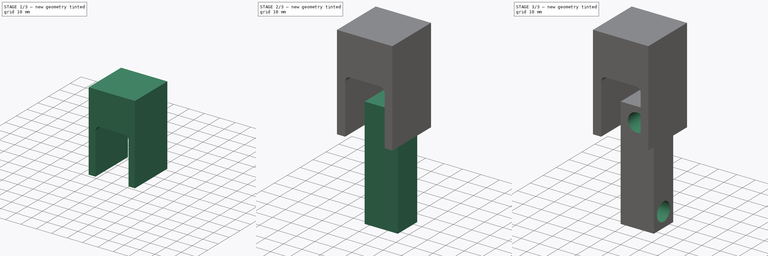
[diagram: build sequence overview — one tinted view per stage of 3, left to right]
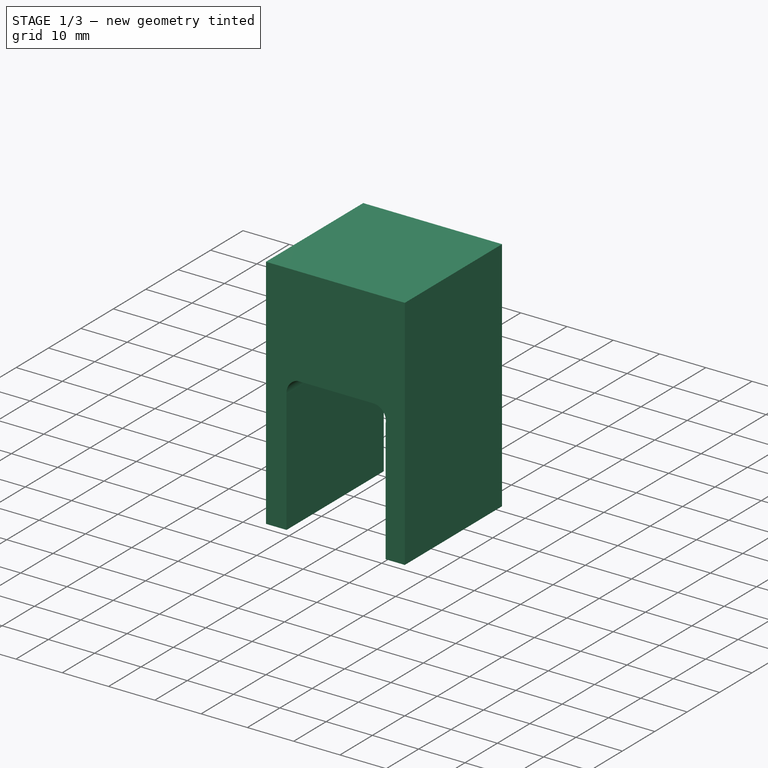
[diagram: stage 1 of 3 — iso view after this stage's code; geometry added in this stage tinted green]
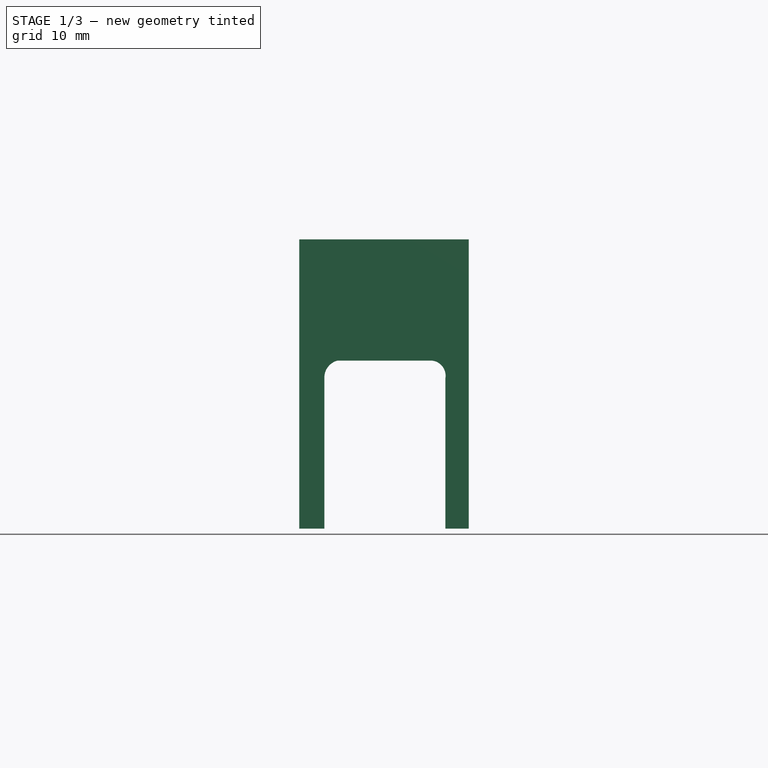
[diagram: stage 1 of 3 — front view after this stage's code; geometry added in this stage tinted green]
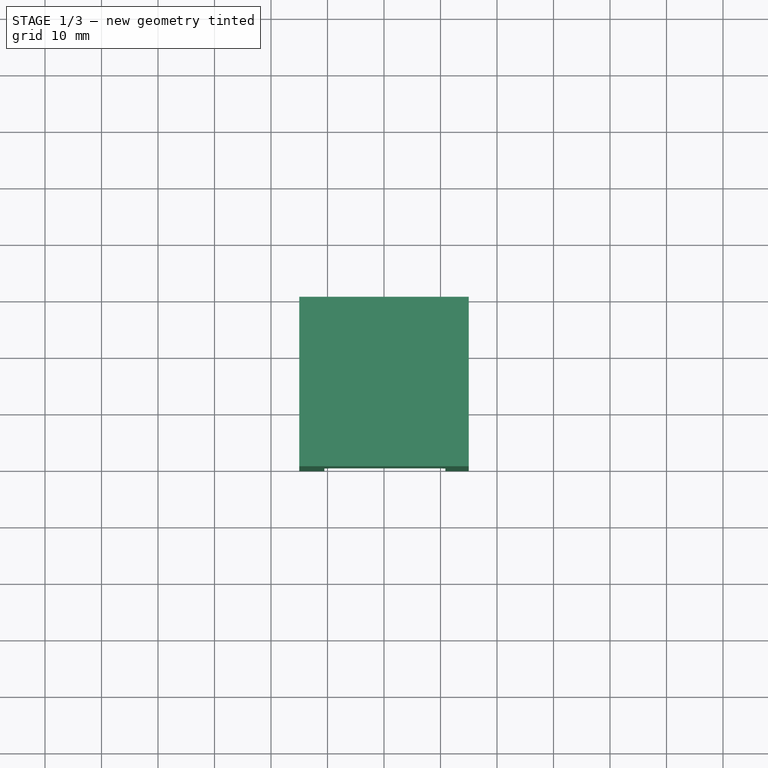
[diagram: stage 1 of 3 — top view after this stage's code; geometry added in this stage tinted green]
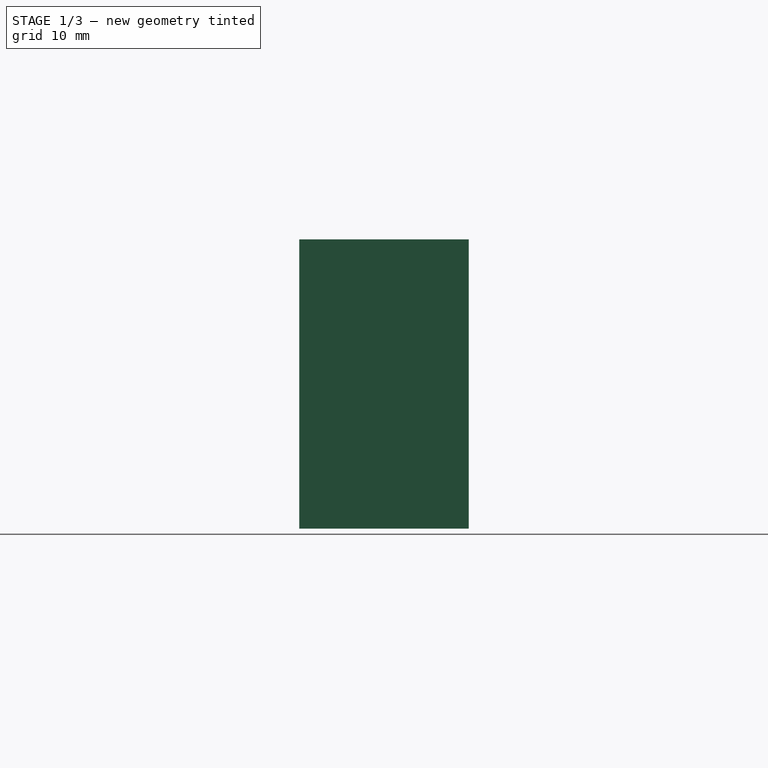
[diagram: stage 1 of 3 — right view after this stage's code; geometry added in this stage tinted green]
FCSTD DOCUMENT  (FreeCAD 0.21R33771 (Git))
Label: Universal Joint Design Fail
License: All rights reserved
LicenseURL: http://en.wikipedia.org/wiki/All_rights_reserved
objects: Sketcher::SketchObject×8, PartDesign::Pocket×4, PartDesign::Pad×3, PartDesign::Body×3
note: 25 computed .brp shape members not serialized (recipe doc carries the construction recipe); baked Part::Feature solids carry a one-line shape summary decoded from their .brp

FEATURE [Sketcher::SketchObject] Sketch005
  FullyConstrained = false
  MapMode = 5
  Placement = pos=(0,0,0) rot=(1,0,0;1.5708rad)
  Support = -> [XZ_Plane002]
  sketch-geometry (4):
    g0: LineSegment StartX=-15 StartY=18.4804 StartZ=0 EndX=-15 EndY=69.6597 EndZ=0
    g1: LineSegment StartX=-15 StartY=69.6597 StartZ=0 EndX=15 EndY=69.6597 EndZ=0
    g2: LineSegment StartX=15 StartY=18.4804 StartZ=0 EndX=15 EndY=69.6597 EndZ=0
    g3: LineSegment StartX=-15 StartY=18.4804 StartZ=0 EndX=15 EndY=18.4804 EndZ=0
  constraints (10):
    c: Vertical(g0)
    c: Coincident(g1,g0)
    c: Horizontal(g1)
    c: Coincident(g2,g1)
    c: Vertical(g2)
    c: Coincident(g3,g0)
    c: Coincident(g3,g2)
    c: Horizontal(g3)
    c: Distance(g2,g-2) = 15
    c: Distance(g0,g-2) = 15
FEATURE [PartDesign::Pad] Pad002
  Direction = (0,-1,2e-16)
  Length = 30
  Length2 = 10
  Placement = pos=(0,0,0) rot=(1,0,0;1.5708rad)
  Profile = -> Sketch005
  ReferenceAxis = -> Sketch005 [N_Axis]
  Type = 0
FEATURE [Sketcher::SketchObject] Sketch006
  FullyConstrained = false
  MapMode = 5
  Placement = pos=(0,0,0) rot=(1,0,0;1.5708rad)
  Support = -> [XZ_Plane002]
  sketch-geometry (6):
    g0: LineSegment StartX=-10.5519 StartY=18.2376 StartZ=0 EndX=-10.5519 EndY=45.045 EndZ=0
    g1: LineSegment StartX=10.8632 StartY=45.045 StartZ=0 EndX=10.8632 EndY=18.2376 EndZ=0
    g2: LineSegment StartX=10.8632 StartY=18.2376 StartZ=0 EndX=-10.5519 EndY=18.2376 EndZ=0
    g3: LineSegment StartX=-8.20953 StartY=48.2163 StartZ=0 EndX=8.36282 EndY=48.2163 EndZ=0
    g4: ArcOfCircle CenterX=-7.4542 CenterY=45.2077 CenterZ=0 NormalX=0 NormalY=0 NormalZ=1 AngleXU=0 Radius=3.10198 StartAngle=1.81677 EndAngle=3.19407
    g5: ArcOfCircle CenterX=8.20696 CenterY=45.5221 CenterZ=0 NormalX=0 NormalY=0 NormalZ=1 AngleXU=0 Radius=2.6987 StartAngle=6.10545 EndAngle=7.7962
  constraints (10):
    c: Vertical(g0)
    c: Vertical(g1)
    c: Coincident(g2,g1)
    c: Coincident(g2,g0)
    c: Horizontal(g2)
    c: Horizontal(g3)
    c: Coincident(g4,g3)
    c: Coincident(g4,g0)
    c: Coincident(g5,g3)
    c: Coincident(g5,g1)
FEATURE [PartDesign::Pocket] Pocket003
  BaseFeature = -> Pad002
  Direction = (0,1,2e-16)
  Length = 31
  Length2 = 5
  Placement = pos=(0,0,0) rot=(1,0,0;1.5708rad)
  Profile = -> Sketch006
  ReferenceAxis = -> Sketch006 [N_Axis]
  Reversed = true
  Type = 0
FEATURE [PartDesign::Body] Body002  label="Yoke002"
  Group = -> [Sketch005,Pad002,Sketch006,Pocket003]
  Origin = -> Origin002
  Placement = pos=(-1.45e-14,0,20) rot=(0,1,0;3.14159rad)
  Tip = -> Pocket003
FEATURE [Sketcher::SketchObject] Sketch007
  FullyConstrained = true
  MapMode = 5
  Support = -> [XY_Plane001]
FEATURE [PartDesign::Body] Body001  label="Yoke1"
  Group = -> [Sketch003,Pad001,Sketch004,Pocket002,Sketch007]
  Origin = -> Origin001
  Placement = pos=(-14,-16,0) rot=(0,0,1;1.5708rad)
  Tip = -> Pocket002
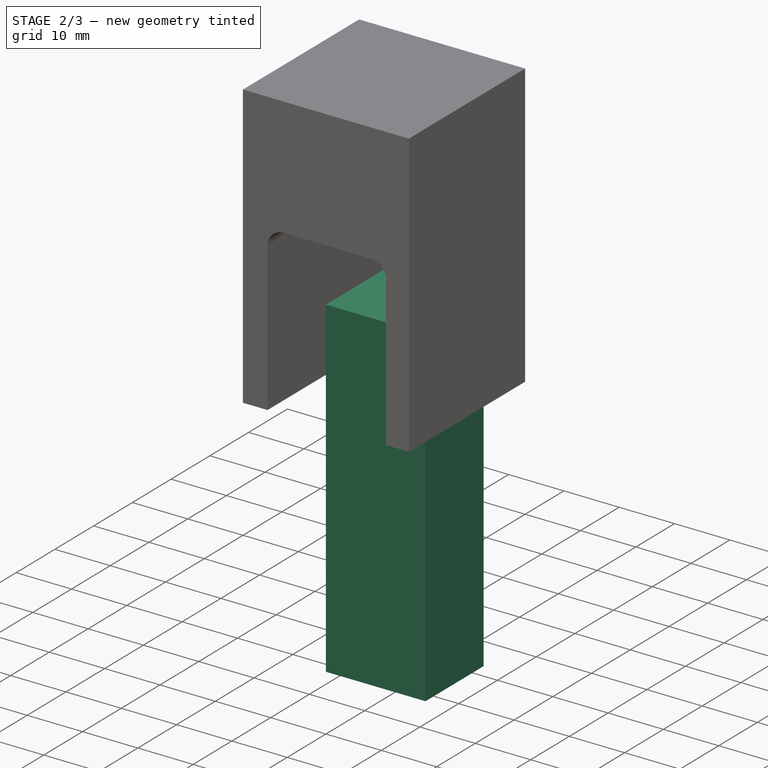
[diagram: stage 2 of 3 — iso view after this stage's code; geometry added in this stage tinted green]
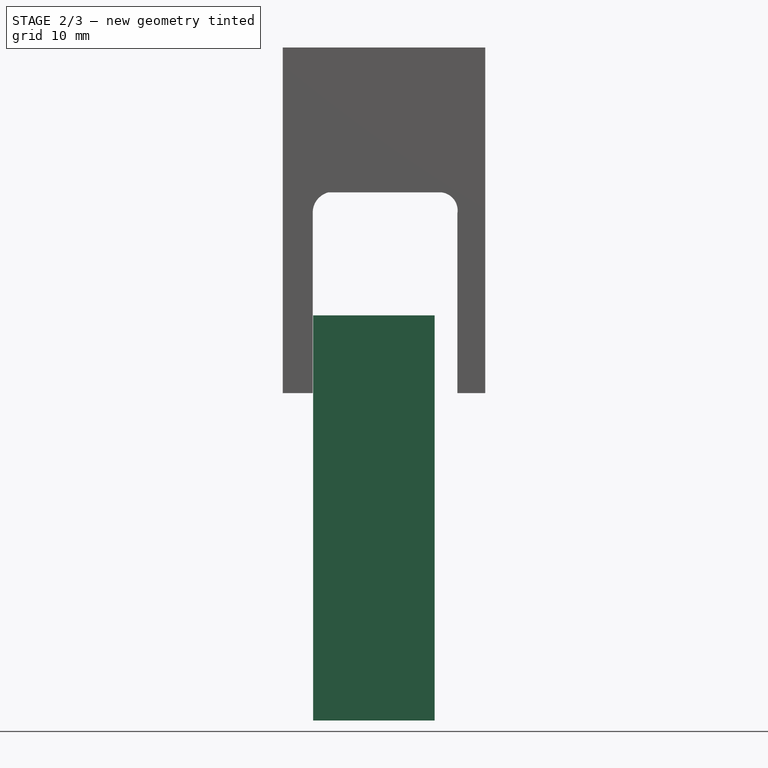
[diagram: stage 2 of 3 — front view after this stage's code; geometry added in this stage tinted green]
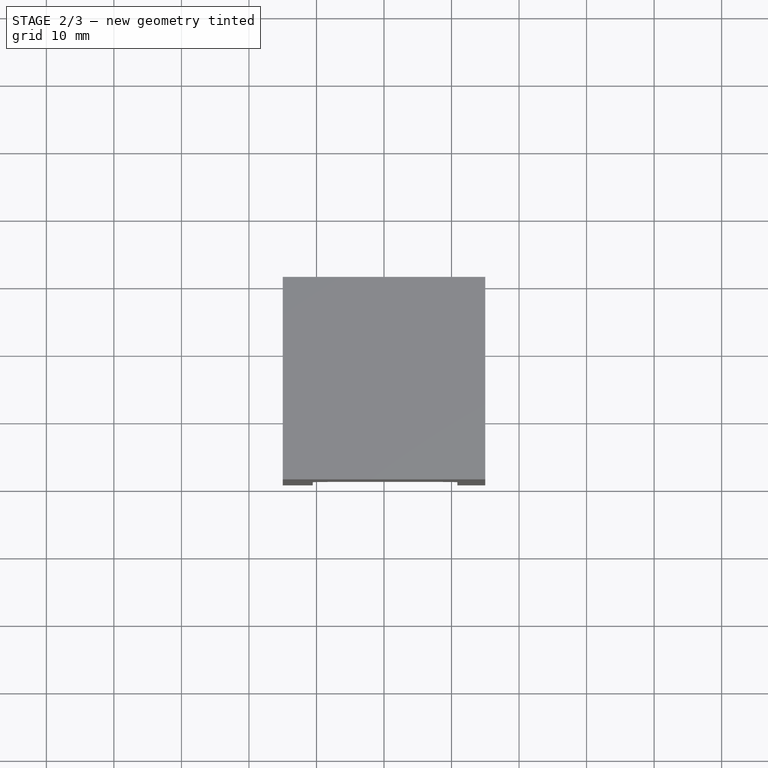
[diagram: stage 2 of 3 — top view after this stage's code; geometry added in this stage tinted green]
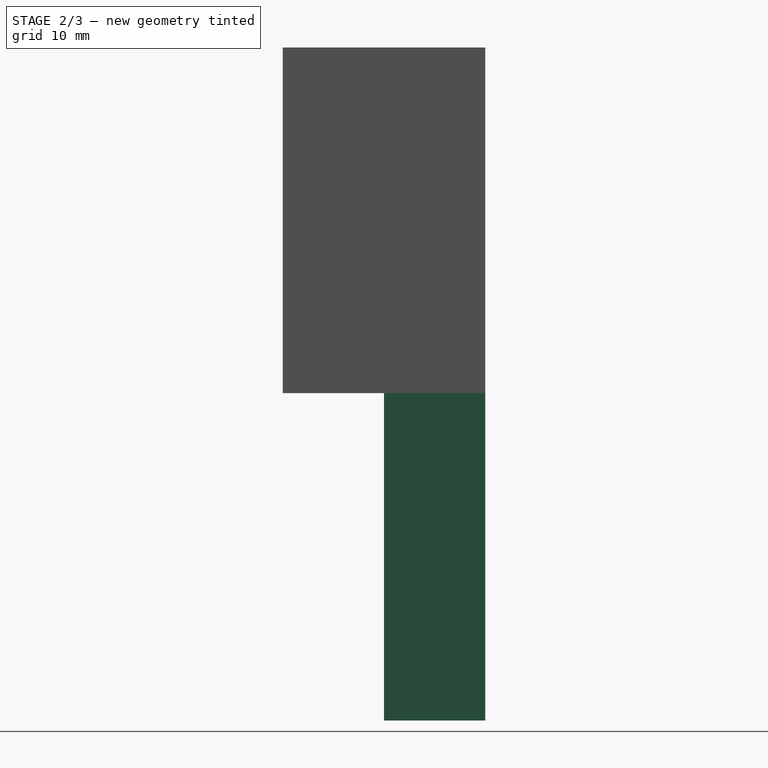
[diagram: stage 2 of 3 — right view after this stage's code; geometry added in this stage tinted green]
FEATURE [Sketcher::SketchObject] Sketch
  FullyConstrained = true
  MapMode = 5
  Placement = pos=(0,0,0) rot=(1,0,0;1.5708rad)
  Support = -> [XZ_Plane]
  sketch-geometry (5):
    g0: LineSegment StartX=-10.5 StartY=30 StartZ=0 EndX=7.5 EndY=30 EndZ=0
    g1: LineSegment StartX=7.5 StartY=5e-15 StartZ=0 EndX=7.5 EndY=30 EndZ=0
    g2: LineSegment StartX=7.5 StartY=5e-15 StartZ=0 EndX=7.5 EndY=-30 EndZ=0
    g3: LineSegment StartX=7.5 StartY=-30 StartZ=0 EndX=-10.5 EndY=-30 EndZ=0
    g4: LineSegment StartX=-10.5 StartY=30 StartZ=0 EndX=-10.5 EndY=-30 EndZ=0
  constraints (15):
    c: Horizontal(g0)
    c: Coincident(g1,g0)
    c: Vertical(g1)
    c: Coincident(g2,g1)
    c: Vertical(g2)
    c: Coincident(g3,g2)
    c: Horizontal(g3)
    c: Distance(g-1,g0) = 30
    c: Distance(g2) = 30
    c: Distance(g-1,g3) = 30
    c: Coincident(g4,g0)
    c: Coincident(g4,g3)
    c: Vertical(g4)
    c: Distance(g0) = 18
    c: Distance(g-1,g2) = 7.5
FEATURE [PartDesign::Pad] Pad
  Direction = (0,-1,-2e-16)
  Length = 15
  Length2 = 10
  Placement = pos=(0,0,0) rot=(1,0,0;1.5708rad)
  Profile = -> Sketch
  ReferenceAxis = -> Sketch [N_Axis]
  Type = 0
FEATURE [PartDesign::Body] Body  label="block"
  Group = -> [Sketch,Pad,Sketch001,Pocket,Sketch002,Pocket001]
  Origin = -> Origin
  Placement = pos=(2,-8,8) rot=(0,0,1;0rad)
  Tip = -> Pocket001
FEATURE [Sketcher::SketchObject] Sketch003
  FullyConstrained = false
  MapMode = 5
  Placement = pos=(0,0,0) rot=(1,0,0;1.5708rad)
  Support = -> [XZ_Plane001]
  sketch-geometry (4):
    g0: LineSegment StartX=-15 StartY=18.4804 StartZ=0 EndX=-15 EndY=69.6597 EndZ=0
    g1: LineSegment StartX=-15 StartY=69.6597 StartZ=0 EndX=15 EndY=69.6597 EndZ=0
    g2: LineSegment StartX=15 StartY=18.4804 StartZ=0 EndX=15 EndY=69.6597 EndZ=0
    g3: LineSegment StartX=-15 StartY=18.4804 StartZ=0 EndX=15 EndY=18.4804 EndZ=0
  constraints (10):
    c: Vertical(g0)
    c: Coincident(g1,g0)
    c: Horizontal(g1)
    c: Coincident(g2,g1)
    c: Vertical(g2)
    c: Coincident(g3,g0)
    c: Coincident(g3,g2)
    c: Horizontal(g3)
    c: Distance(g2,g-2) = 15
    c: Distance(g0,g-2) = 15
FEATURE [PartDesign::Pad] Pad001
  Direction = (0,-1,2e-16)
  Length = 30
  Length2 = 10
  Placement = pos=(0,0,0) rot=(1,0,0;1.5708rad)
  Profile = -> Sketch003
  ReferenceAxis = -> Sketch003 [N_Axis]
  Type = 0
FEATURE [Sketcher::SketchObject] Sketch004
  FullyConstrained = false
  MapMode = 5
  Placement = pos=(0,0,0) rot=(1,0,0;1.5708rad)
  Support = -> [XZ_Plane001]
  sketch-geometry (6):
    g0: LineSegment StartX=-10.5519 StartY=18.2376 StartZ=0 EndX=-10.5519 EndY=45.045 EndZ=0
    g1: LineSegment StartX=10.8632 StartY=45.045 StartZ=0 EndX=10.8632 EndY=18.2376 EndZ=0
    g2: LineSegment StartX=10.8632 StartY=18.2376 StartZ=0 EndX=-10.5519 EndY=18.2376 EndZ=0
    g3: LineSegment StartX=-8.20953 StartY=48.2163 StartZ=0 EndX=8.36282 EndY=48.2163 EndZ=0
    g4: ArcOfCircle CenterX=-7.4542 CenterY=45.2077 CenterZ=0 NormalX=0 NormalY=0 NormalZ=1 AngleXU=0 Radius=3.10198 StartAngle=1.81677 EndAngle=3.19407
    g5: ArcOfCircle CenterX=8.20696 CenterY=45.5221 CenterZ=0 NormalX=0 NormalY=0 NormalZ=1 AngleXU=0 Radius=2.6987 StartAngle=6.10545 EndAngle=7.7962
  constraints (10):
    c: Vertical(g0)
    c: Vertical(g1)
    c: Coincident(g2,g1)
    c: Coincident(g2,g0)
    c: Horizontal(g2)
    c: Horizontal(g3)
    c: Coincident(g4,g3)
    c: Coincident(g4,g0)
    c: Coincident(g5,g3)
    c: Coincident(g5,g1)
FEATURE [PartDesign::Pocket] Pocket002
  BaseFeature = -> Pad001
  Direction = (0,1,2e-16)
  Length = 31
  Length2 = 5
  Placement = pos=(0,0,0) rot=(1,0,0;1.5708rad)
  Profile = -> Sketch004
  ReferenceAxis = -> Sketch004 [N_Axis]
  Reversed = true
  Type = 0
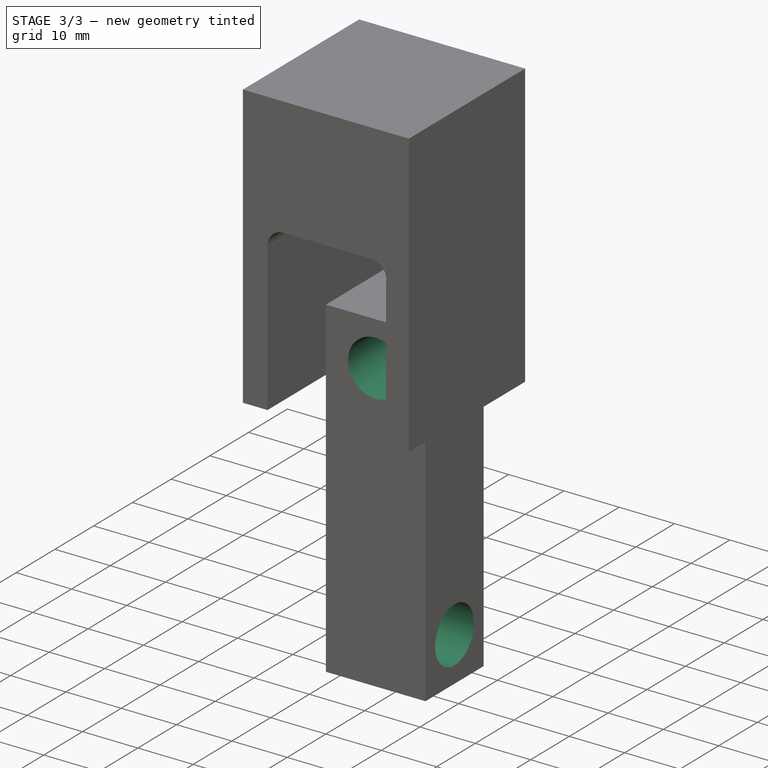
[diagram: stage 3 of 3 — iso view after this stage's code; geometry added in this stage tinted green]
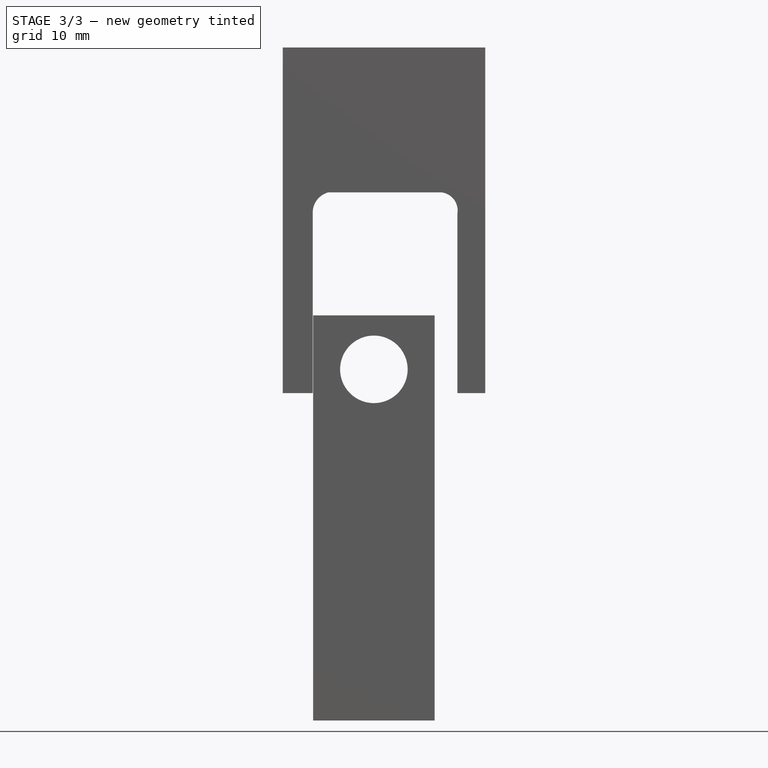
[diagram: stage 3 of 3 — front view after this stage's code; geometry added in this stage tinted green]
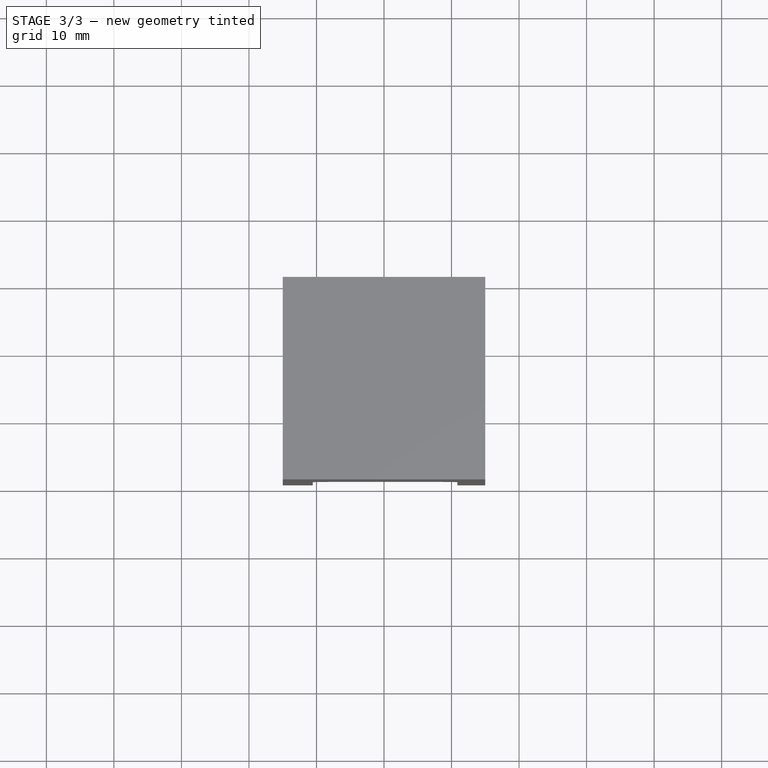
[diagram: stage 3 of 3 — top view after this stage's code; geometry added in this stage tinted green]
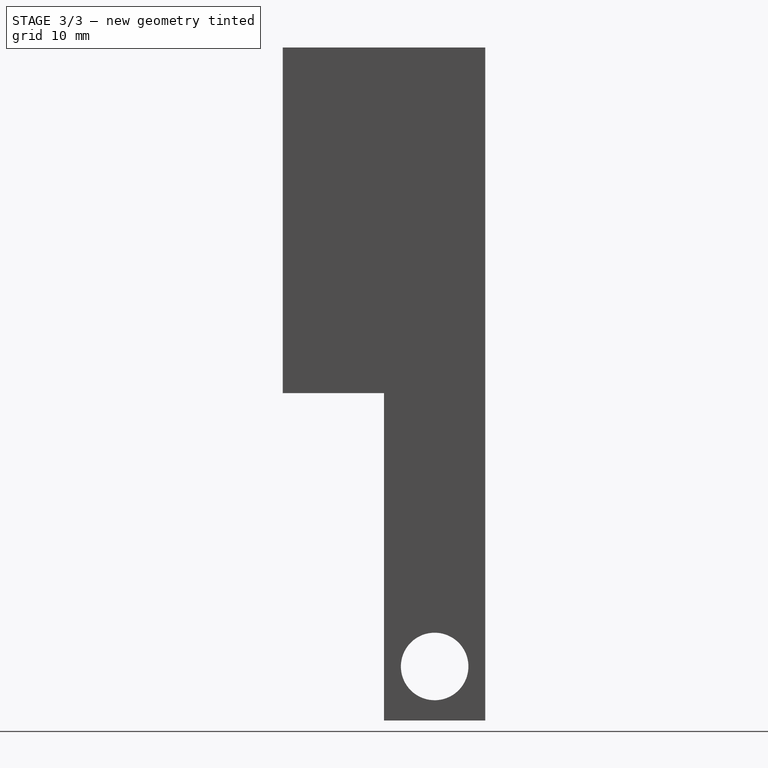
[diagram: stage 3 of 3 — right view after this stage's code; geometry added in this stage tinted green]
FEATURE [Sketcher::SketchObject] Sketch001
  FullyConstrained = true
  MapMode = 5
  Placement = pos=(0,0,0) rot=(1,0,0;1.5708rad)
  Support = -> [XZ_Plane]
  sketch-geometry (1):
    g0: Circle CenterX=-1.5 CenterY=22 CenterZ=0 NormalX=0 NormalY=0 NormalZ=1 AngleXU=0 Radius=5
  constraints (3):
    c: Distance(g0,g-2) = 1.5
    c: Diameter(g0) = 10
    c: Distance(g0,g-1) = 22
FEATURE [PartDesign::Pocket] Pocket
  BaseFeature = -> Pad
  Direction = (0,1,2e-16)
  Length = 15
  Length2 = 5
  Placement = pos=(0,0,0) rot=(1,0,0;1.5708rad)
  Profile = -> Sketch001
  ReferenceAxis = -> Sketch001 [N_Axis]
  Reversed = true
  Type = 0
FEATURE [Sketcher::SketchObject] Sketch002
  FullyConstrained = true
  MapMode = 5
  Placement = pos=(0,0,0) rot=(0.57735,0.57735,0.57735;2.0944rad)
  Support = -> [YZ_Plane]
  sketch-geometry (1):
    g0: Circle CenterX=-7.5 CenterY=-22 CenterZ=0 NormalX=0 NormalY=0 NormalZ=1 AngleXU=0 Radius=5
  constraints (3):
    c: Diameter(g0) = 10
    c: Distance(g0,g-1) = 22
    c: Distance(g0,g-2) = 7.5
FEATURE [PartDesign::Pocket] Pocket001
  BaseFeature = -> Pocket
  Direction = (-1,2e-16,-3e-16)
  Length = 30
  Length2 = 5
  Midplane = true
  Placement = pos=(0,0,0) rot=(1,0,0;1.5708rad)
  Profile = -> Sketch002
  ReferenceAxis = -> Sketch002 [N_Axis]
  Type = 0
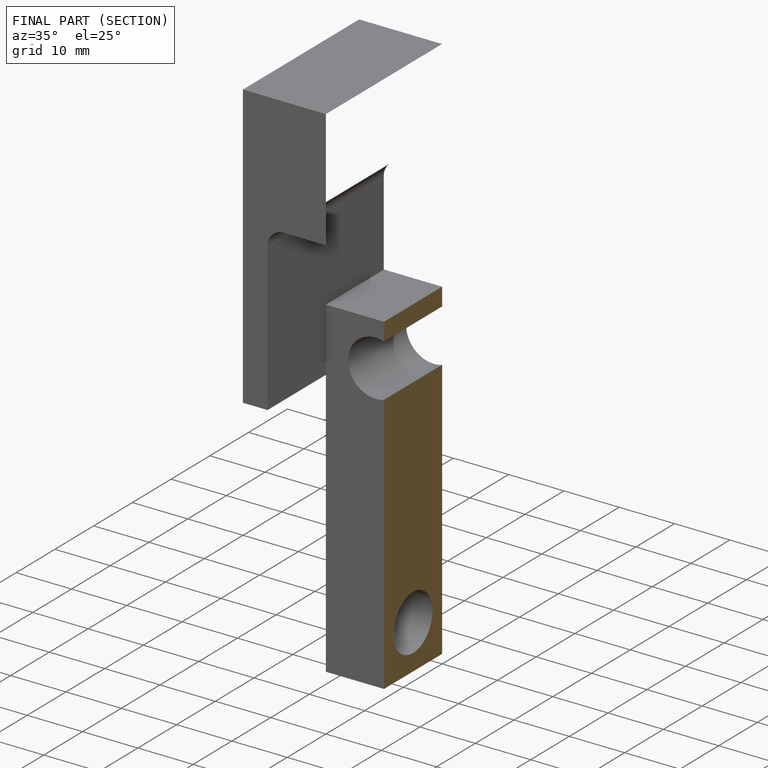
[diagram: finished part — half-section view (interior)]
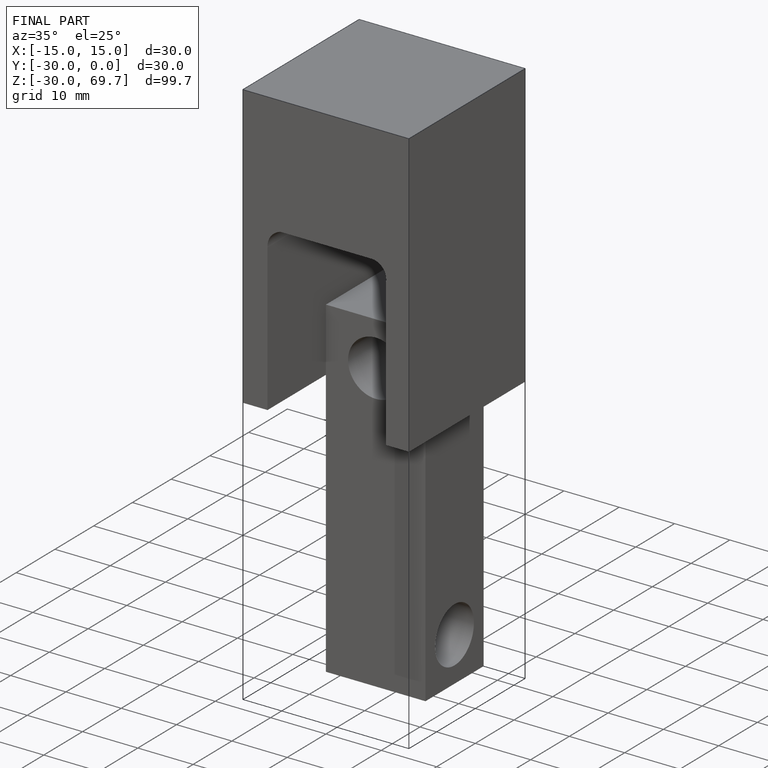
[diagram: finished part — iso view with bounding-box wireframe]
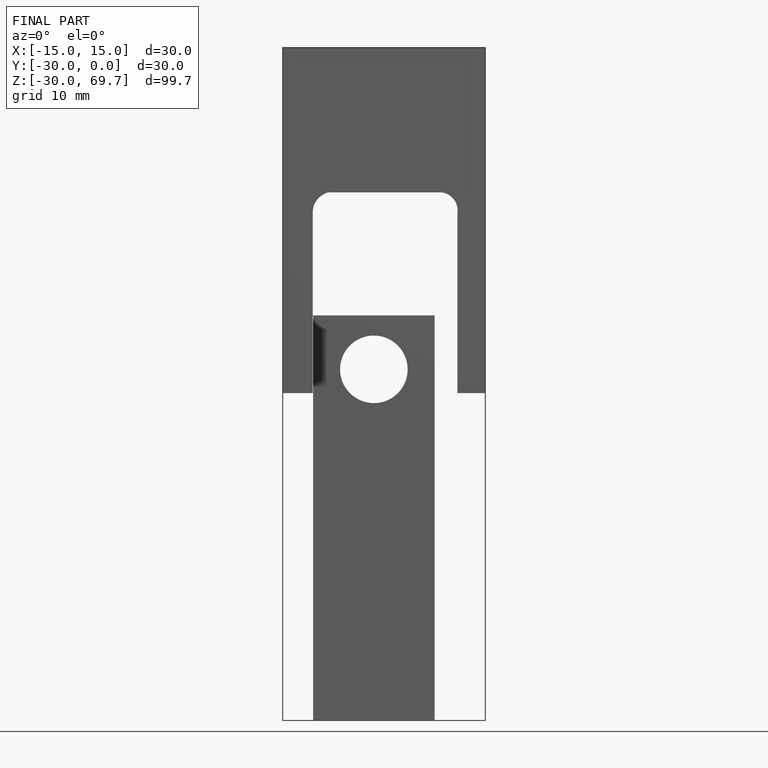
[diagram: finished part — front view with bounding-box wireframe]
